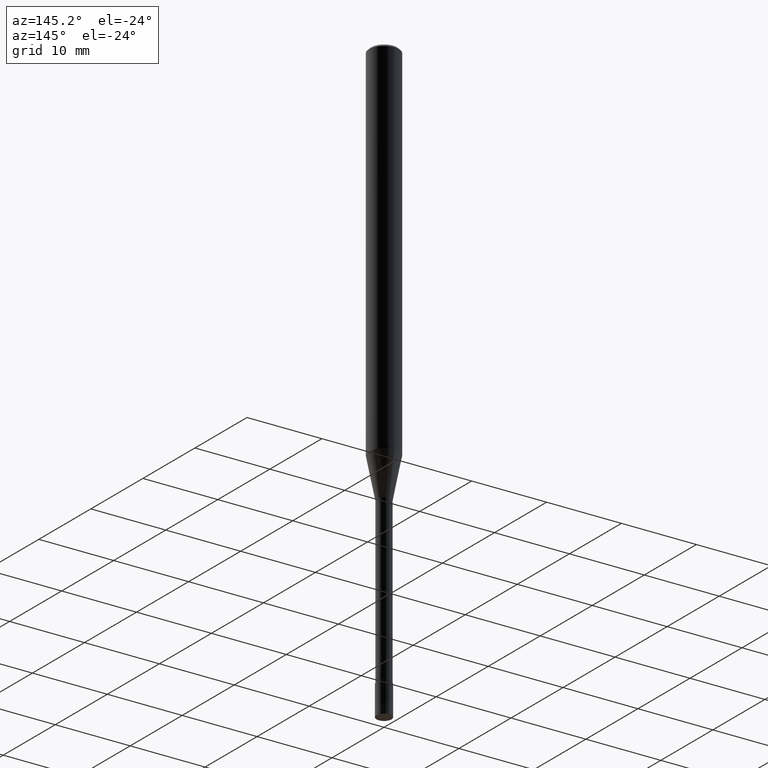
[diagram: clean part render]
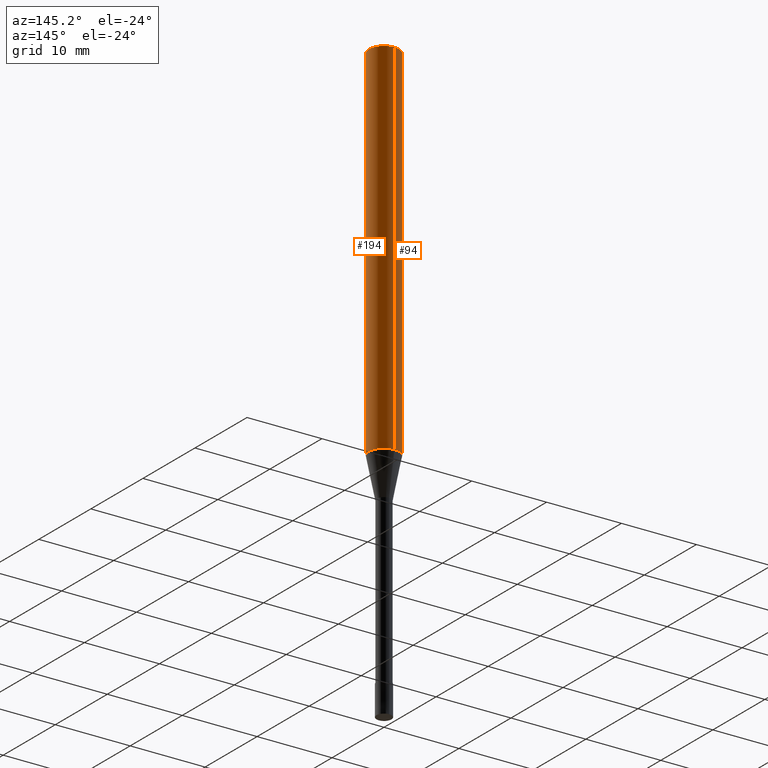
[diagram: same view with one multi-face feature highlighted, each face labeled with its STEP entity id]
A machine part, auxiliary view. The highlighted faces form ONE feature: a constant-radius fillet chain: 2 tangent blend faces with common blend radius 2 mm. The faces share edges in the B-rep.
Their STEP definitions:
[1] entity #94 (Cylinder):
#94=ADVANCED_FACE('',(#231),#232,.T.);
#96=EDGE_CURVE('',#156,#170,#234,.T.);
#102=VERTEX_POINT('',#241);
#124=EDGE_CURVE('',#144,#156,#264,.T.);
#144=VERTEX_POINT('',#288);
#156=VERTEX_POINT('',#303);
#170=VERTEX_POINT('',#318);
#176=EDGE_CURVE('',#102,#170,#325,.T.);
#188=EDGE_CURVE('',#102,#144,#338,.T.);
#231=FACE_OUTER_BOUND('',#378,.T.);
#232=CYLINDRICAL_SURFACE('',#379,2.0);
#234=LINE('',#382,#383);
#241=CARTESIAN_POINT('',(2.44921270764475E-016,-2.0,-48.598));
#264=CIRCLE('',#417,2.0);
#288=CARTESIAN_POINT('',(2.44921270764475E-016,-2.0,-0.299999999999997));
#303=CARTESIAN_POINT('',(0.0,2.0,-0.299999999999997));
#318=CARTESIAN_POINT('',(0.0,2.0,-48.598));
#325=CIRCLE('',#490,2.0);
#338=LINE('',#509,#510);
#378=EDGE_LOOP('',(#544,#545,#546,#547));
#379=AXIS2_PLACEMENT_3D('',#548,#549,#550);
#382=CARTESIAN_POINT('',(-2.44921270764475E-016,2.0,-24.449));
#383=VECTOR('',#551,1.0);
#417=AXIS2_PLACEMENT_3D('',#572,#573,#574);
#490=AXIS2_PLACEMENT_3D('',#662,#663,#664);
#509=CARTESIAN_POINT('',(2.44921270764475E-016,-2.0,-24.449));
#510=VECTOR('',#678,1.0);
#544=ORIENTED_EDGE('',*,*,#96,.T.);
#545=ORIENTED_EDGE('',*,*,#176,.F.);
#546=ORIENTED_EDGE('',*,*,#188,.T.);
#547=ORIENTED_EDGE('',*,*,#124,.T.);
#548=CARTESIAN_POINT('',(0.0,0.0,-24.449));
#549=DIRECTION('',(-0.0,-0.0,1.0));
#550=DIRECTION('',(0.0,1.0,0.0));
#551=DIRECTION('',(0.0,0.0,-1.0));
#572=CARTESIAN_POINT('',(0.0,0.0,-0.299999999999997));
#573=DIRECTION('',(0.0,0.0,-1.0));
#574=DIRECTION('',(0.0,1.0,0.0));
#662=CARTESIAN_POINT('',(0.0,0.0,-48.598));
#663=DIRECTION('',(0.0,0.0,-1.0));
#664=DIRECTION('',(0.0,1.0,0.0));
#678=DIRECTION('',(-0.0,-0.0,1.0));
[2] entity #194 (Cylinder):
#96=EDGE_CURVE('',#156,#170,#234,.T.);
#102=VERTEX_POINT('',#241);
#144=VERTEX_POINT('',#288);
#156=VERTEX_POINT('',#303);
#162=EDGE_CURVE('',#156,#144,#309,.T.);
#170=VERTEX_POINT('',#318);
#188=EDGE_CURVE('',#102,#144,#338,.T.);
#194=ADVANCED_FACE('',(#345),#346,.T.);
#198=EDGE_CURVE('',#170,#102,#350,.T.);
#234=LINE('',#382,#383);
#241=CARTESIAN_POINT('',(2.44921270764475E-016,-2.0,-48.598));
#288=CARTESIAN_POINT('',(2.44921270764475E-016,-2.0,-0.299999999999997));
#303=CARTESIAN_POINT('',(0.0,2.0,-0.299999999999997));
#309=CIRCLE('',#470,2.0);
#318=CARTESIAN_POINT('',(0.0,2.0,-48.598));
#338=LINE('',#509,#510);
#345=FACE_OUTER_BOUND('',#518,.T.);
#346=CYLINDRICAL_SURFACE('',#519,2.0);
#350=CIRCLE('',#525,2.0);
#382=CARTESIAN_POINT('',(-2.44921270764475E-016,2.0,-24.449));
#383=VECTOR('',#551,1.0);
#470=AXIS2_PLACEMENT_3D('',#636,#637,#638);
#509=CARTESIAN_POINT('',(2.44921270764475E-016,-2.0,-24.449));
#510=VECTOR('',#678,1.0);
#518=EDGE_LOOP('',(#691,#692,#693,#694));
#519=AXIS2_PLACEMENT_3D('',#695,#696,#697);
#525=AXIS2_PLACEMENT_3D('',#701,#702,#703);
#551=DIRECTION('',(0.0,0.0,-1.0));
#636=CARTESIAN_POINT('',(0.0,0.0,-0.299999999999997));
#637=DIRECTION('',(0.0,0.0,-1.0));
#638=DIRECTION('',(0.0,1.0,0.0));
#678=DIRECTION('',(-0.0,-0.0,1.0));
#691=ORIENTED_EDGE('',*,*,#96,.F.);
#692=ORIENTED_EDGE('',*,*,#162,.T.);
#693=ORIENTED_EDGE('',*,*,#188,.F.);
#694=ORIENTED_EDGE('',*,*,#198,.F.);
#695=CARTESIAN_POINT('',(0.0,0.0,-24.449));
#696=DIRECTION('',(-0.0,-0.0,1.0));
#697=DIRECTION('',(0.0,1.0,0.0));
#701=CARTESIAN_POINT('',(0.0,0.0,-48.598));
#702=DIRECTION('',(0.0,0.0,-1.0));
#703=DIRECTION('',(0.0,1.0,0.0));